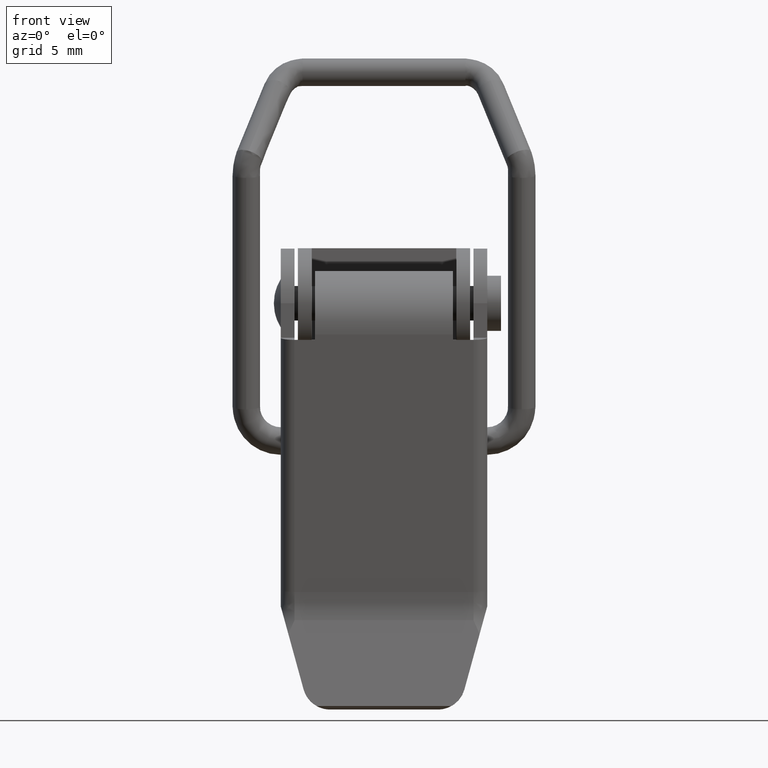
[diagram: clean part render]
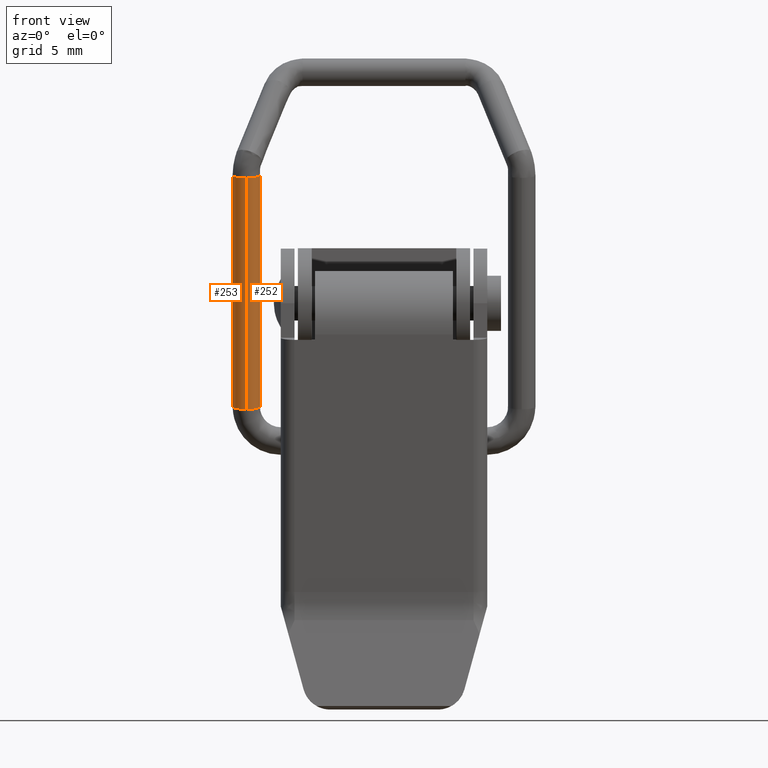
[diagram: same view with one multi-face feature highlighted, each face labeled with its STEP entity id]
A machine part, front view. The highlighted faces form ONE feature: a constant-radius fillet chain: 2 tangent blend faces with common blend radius 1 mm. The faces share edges in the B-rep.
Their STEP definitions:
[1] entity #253 (Cylinder):
#253=ADVANCED_FACE('',(#1313),#1312,.T.);
#1312=CYLINDRICAL_SURFACE('',#3265,1.00000000000E+00);
#1313=FACE_OUTER_BOUND('',#3266,.T.);
#3262=CARTESIAN_POINT('',(-9.99999999999E+00,-1.51337899285E+00,-2.42813365697E+01));
#3263=DIRECTION('',(-7.72439477741E-13,2.01064153610E-01,-9.79578075568E-01));
#3264=DIRECTION('',(-2.14395023329E-29,9.79578075568E-01,2.01064153610E-01));
#3265=AXIS2_PLACEMENT_3D('',#3262,#3263,#3264);
#3266=EDGE_LOOP('',(#3839,#3840,#3841,#3842,#3843,#3844));
#3839=ORIENTED_EDGE('',*,*,#4082,.F.);
#3840=ORIENTED_EDGE('',*,*,#4086,.F.);
#3841=ORIENTED_EDGE('',*,*,#4137,.T.);
#3842=ORIENTED_EDGE('',*,*,#4077,.T.);
#3843=ORIENTED_EDGE('',*,*,#4072,.T.);
#3844=ORIENTED_EDGE('',*,*,#4138,.F.);
#4072=EDGE_CURVE('',#5602,#5594,#5603,.T.);
#4077=EDGE_CURVE('',#5635,#5602,#5636,.T.);
#4082=EDGE_CURVE('',#5663,#5670,#5671,.T.);
#4086=EDGE_CURVE('',#5690,#5663,#5697,.T.);
#4137=EDGE_CURVE('',#5690,#5635,#6034,.T.);
#4138=EDGE_CURVE('',#5670,#5594,#6040,.T.);
#5594=VERTEX_POINT('',#6941);
#5602=VERTEX_POINT('',#6951);
#5603=(BOUNDED_CURVE() B_SPLINE_CURVE(3,(#6952,#6953,#6954,#6955,#6956,#6957),.UNSPECIFIED.,.F.,.F.) B_SPLINE_CURVE_WITH_KNOTS((4,2,4),(0.00000000000E+00,1.25000000000E-01,2.17751758457E-01),.UNSPECIFIED.) CURVE() GEOMETRIC_REPRESENTATION_ITEM() RATIONAL_B_SPLINE_CURVE((1.00000000000E+00,1.00000000000E+00,1.00000000000E+00,1.00000000000E+00,1.00000000000E+00,1.00000000000E+00)) REPRESENTATION_ITEM('') );
#5635=VERTEX_POINT('',#6992);
#5636=(BOUNDED_CURVE() B_SPLINE_CURVE(3,(#6993,#6994,#6995,#6996,#6997,#6998,#6999,#7000),.UNSPECIFIED.,.F.,.F.) B_SPLINE_CURVE_WITH_KNOTS((4,2,2,4),(7.17751923987E-01,7.50000000000E-01,8.75000000000E-01,1.00000000000E+00),.UNSPECIFIED.) CURVE() GEOMETRIC_REPRESENTATION_ITEM() RATIONAL_B_SPLINE_CURVE((1.00000000000E+00,1.00000000000E+00,1.00000000000E+00,1.00000000000E+00,1.00000000000E+00,1.00000000000E+00,1.00000000000E+00,1.00000000000E+00)) REPRESENTATION_ITEM('') );
#5663=VERTEX_POINT('',#7026);
#5670=VERTEX_POINT('',#7043);
#5671=(BOUNDED_CURVE() B_SPLINE_CURVE(3,(#7044,#7045,#7046,#7047,#7048,#7049),.UNSPECIFIED.,.F.,.F.) B_SPLINE_CURVE_WITH_KNOTS((4,2,4),(0.00000000000E+00,1.25000000000E-01,2.17748595191E-01),.UNSPECIFIED.) CURVE() GEOMETRIC_REPRESENTATION_ITEM() RATIONAL_B_SPLINE_CURVE((1.00000000000E+00,1.00000000000E+00,1.00000000000E+00,1.00000000000E+00,1.00000000000E+00,1.00000000000E+00)) REPRESENTATION_ITEM('') );
#5690=VERTEX_POINT('',#7073);
#5697=(BOUNDED_CURVE() B_SPLINE_CURVE(3,(#7080,#7081,#7082,#7083,#7084,#7085,#7086,#7087),.UNSPECIFIED.,.F.,.F.) B_SPLINE_CURVE_WITH_KNOTS((4,2,2,4),(7.17756061778E-01,7.50000000000E-01,8.75000000000E-01,1.00000000000E+00),.UNSPECIFIED.) CURVE() GEOMETRIC_REPRESENTATION_ITEM() RATIONAL_B_SPLINE_CURVE((1.00000000000E+00,1.00000000000E+00,1.00000000000E+00,1.00000000000E+00,1.00000000000E+00,1.00000000000E+00,1.00000000000E+00,1.00000000000E+00)) REPRESENTATION_ITEM('') );
#6034=(BOUNDED_CURVE() B_SPLINE_CURVE(1,(#7458,#7459),.UNSPECIFIED.,.F.,.F.) B_SPLINE_CURVE_WITH_KNOTS((2,2),(8.65322127931E-02,9.16666666317E-01),.UNSPECIFIED.) CURVE() GEOMETRIC_REPRESENTATION_ITEM() RATIONAL_B_SPLINE_CURVE((1.00000000000E+00,1.00000000000E+00)) REPRESENTATION_ITEM('') );
#6040=(BOUNDED_CURVE() B_SPLINE_CURVE(1,(#7460,#7461),.UNSPECIFIED.,.F.,.F.) B_SPLINE_CURVE_WITH_KNOTS((2,2),(8.33873227872E-02,9.16666666667E-01),.UNSPECIFIED.) CURVE() GEOMETRIC_REPRESENTATION_ITEM() RATIONAL_B_SPLINE_CURVE((7.50000000000E-01,7.50000000000E-01)) REPRESENTATION_ITEM('') );
#6941=CARTESIAN_POINT('',(-9.99999999999E+00,-2.49295706842E+00,-2.44824007233E+01));
#6951=CARTESIAN_POINT('',(-1.09795596603E+01,-1.71042489535E+00,-2.43217813986E+01));
#6952=CARTESIAN_POINT('',(-1.09795596603E+01,-1.71042489535E+00,-2.43217813986E+01));
#6953=CARTESIAN_POINT('',(-1.09268977052E+01,-1.96163585062E+00,-2.43733439226E+01));
#6954=CARTESIAN_POINT('',(-1.07689898559E+01,-2.19006364381E+00,-2.44202300689E+01));
#6955=CARTESIAN_POINT('',(-1.03857529487E+01,-2.43755949218E+00,-2.44710300454E+01));
#6956=CARTESIAN_POINT('',(-1.01881872776E+01,-2.49338260270E+00,-2.44824880667E+01));
#6957=CARTESIAN_POINT('',(-9.99999999999E+00,-2.49295706842E+00,-2.44824007233E+01));
#6992=CARTESIAN_POINT('',(-1.00000021196E+01,-5.34357442833E-01,-2.40803866463E+01));
#6993=CARTESIAN_POINT('',(-1.00000021196E+01,-5.34357442833E-01,-2.40803866463E+01));
#6994=CARTESIAN_POINT('',(-1.00674967520E+01,-5.34110767507E-01,-2.40803360147E+01));
#6995=CARTESIAN_POINT('',(-1.01349941837E+01,-5.40515303770E-01,-2.40816505834E+01));
#6996=CARTESIAN_POINT('',(-1.04576019706E+01,-6.05410322532E-01,-2.40949706671E+01));
#6997=CARTESIAN_POINT('',(-1.06907919520E+01,-7.60093389659E-01,-2.41267202752E+01));
#6998=CARTESIAN_POINT('',(-1.09789891093E+01,-1.18831365281E+00,-2.42146149994E+01));
#6999=CARTESIAN_POINT('',(-1.10322216154E+01,-1.45921394008E+00,-2.42702188745E+01));
#7000=CARTESIAN_POINT('',(-1.09795596603E+01,-1.71042489535E+00,-2.43217813986E+01));
#7026=CARTESIAN_POINT('',(-1.09795596603E+01,-5.16236280818E+00,-7.53578373301E+00));
#7043=CARTESIAN_POINT('',(-9.99999999998E+00,-5.94384046982E+00,-7.66980802265E+00));
#7044=CARTESIAN_POINT('',(-1.09795596603E+01,-5.16236280818E+00,-7.53578373301E+00));
#7045=CARTESIAN_POINT('',(-1.09268977052E+01,-5.41511382155E+00,-7.57917224731E+00));
#7046=CARTESIAN_POINT('',(-1.07689898559E+01,-5.64494199983E+00,-7.61862571207E+00));
#7047=CARTESIAN_POINT('',(-1.03882367008E+01,-5.89234128068E+00,-7.66109552096E+00));
#7048=CARTESIAN_POINT('',(-1.01941398909E+01,-5.94841452439E+00,-7.67072133691E+00));
#7049=CARTESIAN_POINT('',(-9.99999999998E+00,-5.94384046982E+00,-7.66980802265E+00));
#7073=CARTESIAN_POINT('',(-9.99999999998E+00,-3.97166029643E+00,-7.33113233206E+00));
#7080=CARTESIAN_POINT('',(-9.99999999998E+00,-3.97166029643E+00,-7.33113233206E+00));
#7081=CARTESIAN_POINT('',(-1.00675140734E+01,-3.97883889655E+00,-7.33261404646E+00));
#7082=CARTESIAN_POINT('',(-1.01350026727E+01,-3.98528276043E+00,-7.33372023265E+00));
#7083=CARTESIAN_POINT('',(-1.04576019706E+01,-4.05057390241E+00,-7.34492843953E+00));
#7084=CARTESIAN_POINT('',(-1.06907919520E+01,-4.20620525984E+00,-7.37164490364E+00));
#7085=CARTESIAN_POINT('',(-1.09789891093E+01,-4.63705074324E+00,-7.44560601330E+00));
#7086=CARTESIAN_POINT('',(-1.10322216154E+01,-4.90961179480E+00,-7.49239521871E+00));
#7087=CARTESIAN_POINT('',(-1.09795596603E+01,-5.16236280818E+00,-7.53578373301E+00));
#7458=CARTESIAN_POINT('',(-9.99999999998E+00,-3.97166029643E+00,-7.33113233206E+00));
#7459=CARTESIAN_POINT('',(-9.99999999999E+00,-5.33800918731E-01,-2.40802724091E+01));
#7460=CARTESIAN_POINT('',(-9.99999999998E+00,-5.94384046982E+00,-7.66980802265E+00));
#7461=CARTESIAN_POINT('',(-9.99999999999E+00,-2.49295706842E+00,-2.44824007233E+01));
[2] entity #252 (Cylinder):
#252=ADVANCED_FACE('',(#1303),#1302,.T.);
#1302=CYLINDRICAL_SURFACE('',#3260,1.00000000000E+00);
#1303=FACE_OUTER_BOUND('',#3261,.T.);
#3257=CARTESIAN_POINT('',(-9.99999999999E+00,-1.51337899285E+00,-2.42813365697E+01));
#3258=DIRECTION('',(-7.72439477741E-13,2.01064153610E-01,-9.79578075568E-01));
#3259=DIRECTION('',(-2.14395023329E-29,9.79578075568E-01,2.01064153610E-01));
#3260=AXIS2_PLACEMENT_3D('',#3257,#3258,#3259);
#3261=EDGE_LOOP('',(#3833,#3834,#3835,#3836,#3837,#3838));
#3833=ORIENTED_EDGE('',*,*,#4071,.T.);
#3834=ORIENTED_EDGE('',*,*,#4078,.T.);
#3835=ORIENTED_EDGE('',*,*,#4137,.F.);
#3836=ORIENTED_EDGE('',*,*,#4085,.F.);
#3837=ORIENTED_EDGE('',*,*,#4083,.F.);
#3838=ORIENTED_EDGE('',*,*,#4138,.T.);
#4071=EDGE_CURVE('',#5594,#5595,#5596,.T.);
#4078=EDGE_CURVE('',#5595,#5635,#5642,.T.);
#4083=EDGE_CURVE('',#5670,#5677,#5678,.T.);
#4085=EDGE_CURVE('',#5677,#5690,#5691,.T.);
#4137=EDGE_CURVE('',#5690,#5635,#6034,.T.);
#4138=EDGE_CURVE('',#5670,#5594,#6040,.T.);
#5594=VERTEX_POINT('',#6941);
#5595=VERTEX_POINT('',#6942);
#5596=(BOUNDED_CURVE() B_SPLINE_CURVE(3,(#6943,#6944,#6945,#6946,#6947,#6948,#6949,#6950),.UNSPECIFIED.,.F.,.F.) B_SPLINE_CURVE_WITH_KNOTS((4,2,2,4),(2.19169026057E-01,2.50000000000E-01,3.75000000000E-01,4.99999628926E-01),.UNSPECIFIED.) CURVE() GEOMETRIC_REPRESENTATION_ITEM() RATIONAL_B_SPLINE_CURVE((1.00000000000E+00,1.00000000000E+00,1.00000000000E+00,1.00000000000E+00,1.00000000000E+00,1.00000000000E+00,1.00000000000E+00,1.00000000000E+00)) REPRESENTATION_ITEM('') );
#5635=VERTEX_POINT('',#6992);
#5642=(BOUNDED_CURVE() B_SPLINE_CURVE(3,(#7001,#7002,#7003,#7004,#7005,#7006),.UNSPECIFIED.,.F.,.F.) B_SPLINE_CURVE_WITH_KNOTS((4,2,4),(4.99999628926E-01,6.25000000000E-01,7.17751923987E-01),.UNSPECIFIED.) CURVE() GEOMETRIC_REPRESENTATION_ITEM() RATIONAL_B_SPLINE_CURVE((1.00000000000E+00,1.00000000000E+00,1.00000000000E+00,1.00000000000E+00,1.00000000000E+00,1.00000000000E+00)) REPRESENTATION_ITEM('') );
#5670=VERTEX_POINT('',#7043);
#5677=VERTEX_POINT('',#7050);
#5678=(BOUNDED_CURVE() B_SPLINE_CURVE(3,(#7051,#7052,#7053,#7054,#7055,#7056,#7057,#7058),.UNSPECIFIED.,.F.,.F.) B_SPLINE_CURVE_WITH_KNOTS((4,2,2,4),(2.21047593181E-01,2.50000000000E-01,3.75000000000E-01,5.00000186173E-01),.UNSPECIFIED.) CURVE() GEOMETRIC_REPRESENTATION_ITEM() RATIONAL_B_SPLINE_CURVE((1.00000000000E+00,1.00000000000E+00,1.00000000000E+00,1.00000000000E+00,1.00000000000E+00,1.00000000000E+00,1.00000000000E+00,1.00000000000E+00)) REPRESENTATION_ITEM('') );
#5690=VERTEX_POINT('',#7073);
#5691=(BOUNDED_CURVE() B_SPLINE_CURVE(3,(#7074,#7075,#7076,#7077,#7078,#7079),.UNSPECIFIED.,.F.,.F.) B_SPLINE_CURVE_WITH_KNOTS((4,2,4),(5.00000186173E-01,6.25000000000E-01,7.17756061778E-01),.UNSPECIFIED.) CURVE() GEOMETRIC_REPRESENTATION_ITEM() RATIONAL_B_SPLINE_CURVE((1.00000000000E+00,1.00000000000E+00,1.00000000000E+00,1.00000000000E+00,1.00000000000E+00,1.00000000000E+00)) REPRESENTATION_ITEM('') );
#6034=(BOUNDED_CURVE() B_SPLINE_CURVE(1,(#7458,#7459),.UNSPECIFIED.,.F.,.F.) B_SPLINE_CURVE_WITH_KNOTS((2,2),(8.65322127931E-02,9.16666666317E-01),.UNSPECIFIED.) CURVE() GEOMETRIC_REPRESENTATION_ITEM() RATIONAL_B_SPLINE_CURVE((1.00000000000E+00,1.00000000000E+00)) REPRESENTATION_ITEM('') );
#6040=(BOUNDED_CURVE() B_SPLINE_CURVE(1,(#7460,#7461),.UNSPECIFIED.,.F.,.F.) B_SPLINE_CURVE_WITH_KNOTS((2,2),(8.33873227872E-02,9.16666666667E-01),.UNSPECIFIED.) CURVE() GEOMETRIC_REPRESENTATION_ITEM() RATIONAL_B_SPLINE_CURVE((7.50000000000E-01,7.50000000000E-01)) REPRESENTATION_ITEM('') );
#6941=CARTESIAN_POINT('',(-9.99999999999E+00,-2.49295706842E+00,-2.44824007233E+01));
#6942=CARTESIAN_POINT('',(-9.02043987068E+00,-1.31633532758E+00,-2.42408922001E+01));
#6943=CARTESIAN_POINT('',(-9.99999999999E+00,-2.49295706842E+00,-2.44824007233E+01));
#6944=CARTESIAN_POINT('',(-9.92657364787E+00,-2.49207100727E+00,-2.44822188541E+01));
#6945=CARTESIAN_POINT('',(-9.86209851104E+00,-2.48565785528E+00,-2.44809025170E+01));
#6946=CARTESIAN_POINT('',(-9.54239802936E+00,-2.42134766317E+00,-2.44677024723E+01));
#6947=CARTESIAN_POINT('',(-9.30920804800E+00,-2.26666459604E+00,-2.44359528642E+01));
#6948=CARTESIAN_POINT('',(-9.02101089065E+00,-1.83844433290E+00,-2.43480581401E+01));
#6949=CARTESIAN_POINT('',(-8.96777838456E+00,-1.56754404562E+00,-2.42924542649E+01));
#6950=CARTESIAN_POINT('',(-9.02044018334E+00,-1.31633383610E+00,-2.42408918939E+01));
#6992=CARTESIAN_POINT('',(-1.00000021196E+01,-5.34357442833E-01,-2.40803866463E+01));
#7001=CARTESIAN_POINT('',(-9.02044018334E+00,-1.31633383610E+00,-2.42408918939E+01));
#7002=CARTESIAN_POINT('',(-9.07310229478E+00,-1.06512213508E+00,-2.41893292168E+01));
#7003=CARTESIAN_POINT('',(-9.23101014407E+00,-8.36694341895E-01,-2.41424430706E+01));
#7004=CARTESIAN_POINT('',(-9.61176911987E+00,-5.90798751030E-01,-2.40919715563E+01));
#7005=CARTESIAN_POINT('',(-9.80587404157E+00,-5.35066930465E-01,-2.40805322728E+01));
#7006=CARTESIAN_POINT('',(-1.00000021196E+01,-5.34357442833E-01,-2.40803866463E+01));
#7043=CARTESIAN_POINT('',(-9.99999999998E+00,-5.94384046982E+00,-7.66980802265E+00));
#7050=CARTESIAN_POINT('',(-9.02044057496E+00,-4.76585387938E+00,-7.46771700957E+00));
#7051=CARTESIAN_POINT('',(-9.99999999998E+00,-5.94384046982E+00,-7.66980802265E+00));
#7052=CARTESIAN_POINT('',(-9.91872109729E+00,-5.94799094569E+00,-7.67064862325E+00));
#7053=CARTESIAN_POINT('',(-9.85824447098E+00,-5.94156834022E+00,-7.66954608639E+00));
#7054=CARTESIAN_POINT('',(-9.54239802935E+00,-5.87764391447E+00,-7.65857249692E+00));
#7055=CARTESIAN_POINT('',(-9.30920804798E+00,-5.72201255705E+00,-7.63185603281E+00));
#7056=CARTESIAN_POINT('',(-9.02101089064E+00,-5.29116707365E+00,-7.55789492315E+00));
#7057=CARTESIAN_POINT('',(-8.96777838455E+00,-5.01860602209E+00,-7.51110571774E+00));
#7058=CARTESIAN_POINT('',(-9.02044041809E+00,-4.76585463227E+00,-7.46771713882E+00));
#7073=CARTESIAN_POINT('',(-9.99999999998E+00,-3.97166029643E+00,-7.33113233206E+00));
#7074=CARTESIAN_POINT('',(-9.02044041809E+00,-4.76585463227E+00,-7.46771713882E+00));
#7075=CARTESIAN_POINT('',(-9.07310229477E+00,-4.51310399533E+00,-7.42432868914E+00));
#7076=CARTESIAN_POINT('',(-9.23101014406E+00,-4.28327581706E+00,-7.38487522438E+00));
#7077=CARTESIAN_POINT('',(-9.61177635516E+00,-4.03586805290E+00,-7.34240395920E+00));
#7078=CARTESIAN_POINT('',(-9.80589136020E+00,-3.97979426463E+00,-7.33277804977E+00));
#7079=CARTESIAN_POINT('',(-9.99999999998E+00,-3.97166029643E+00,-7.33113233206E+00));
#7458=CARTESIAN_POINT('',(-9.99999999998E+00,-3.97166029643E+00,-7.33113233206E+00));
#7459=CARTESIAN_POINT('',(-9.99999999999E+00,-5.33800918731E-01,-2.40802724091E+01));
#7460=CARTESIAN_POINT('',(-9.99999999998E+00,-5.94384046982E+00,-7.66980802265E+00));
#7461=CARTESIAN_POINT('',(-9.99999999999E+00,-2.49295706842E+00,-2.44824007233E+01));